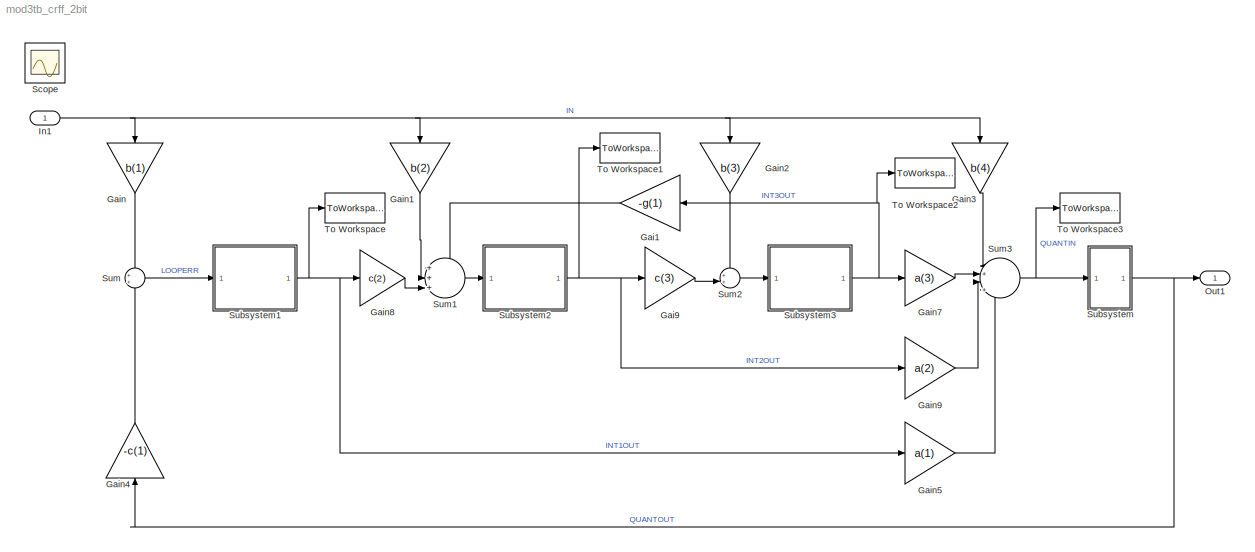
MODEL mod3tb_crff_2bit
KIND model
BLOCK [Gain] Gai1
  Gain = -g(1)
  NameLocation = top
  SID = 132
BLOCK [Gain] Gai9
  Gain = c(3)
  SID = 130
BLOCK [Gain] Gain
  Gain = b(1)
  NameLocation = left
  SID = 121
BLOCK [Gain] Gain1
  Gain = b(2)
  NameLocation = left
  SID = 122
BLOCK [Gain] Gain2
  Gain = b(3)
  NameLocation = left
  SID = 123
BLOCK [Gain] Gain3
  Gain = b(4)
  NameLocation = left
  SID = 124
BLOCK [Gain] Gain4
  Gain = -c(1)
  NameLocation = right
  SID = 125
BLOCK [Gain] Gain5
  Gain = a(1)
  SID = 238
BLOCK [Gain] Gain7
  Gain = a(3)
  SID = 131
BLOCK [Gain] Gain8
  Gain = c(2)
  SID = 129
BLOCK [Gain] Gain9
  Gain = a(2)
  SID = 237
BLOCK [Inport] In1
  SID = 73
BLOCK [Outport] Out1
  SID = 74
BLOCK [Scope] Scope
  Floating = off
  IOType = viewer
  NumInputPorts = 1
  Ports = []
  SID = 207
  ScopeSpecificationString = Simulink.scopes.TimeScopeBlockCfg('CurrentConfiguration', extmgr.ConfigurationSet(extmgr.Configuration('Core','General UI',true),extmgr.Configuration('Core','Source UI',true),extmgr.Configuration('Sources','WiredSimulink',true,'DataLoggingMaxPoints','7500','DataLoggingLimitDataPoints',true,'DataLoggingSaveFormat','Array','DataLoggingDecimation','1','DataLoggingDecimateData',true),extmgr.Configurat...<+5043ch>
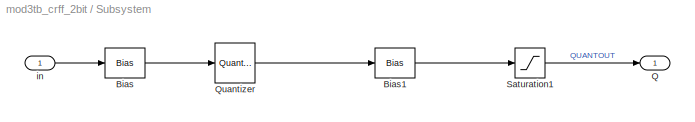
BLOCK [SubSystem] Subsystem
  AttributesFormatString = 3-bit quantiser
  Ports = [1, 1]
  RequestExecContextInheritance = off
  SID = 250
BLOCK [Bias] Subsystem/Bias
  AttributesFormatString = Need offset to give\\nMID-RISE quantiser
  Bias = 1/7
  SID = 252
  SaturateOnIntegerOverflow = off
BLOCK [Bias] Subsystem/Bias1
  Bias = -1/7
  SID = 253
  SaturateOnIntegerOverflow = off
BLOCK [Outport] Subsystem/Q
  SID = 256
BLOCK [Quantizer] Subsystem/Quantizer
  LinearizeAsGain = off
  NameLocation = top
  QuantizationInterval = 2/7
  SID = 254
BLOCK [Saturate] Subsystem/Saturation1
  AttributesFormatString = Limit quantiser\\noutput to +/-1
  LowerLimit = -1
  SID = 255
  UpperLimit = 1
BLOCK [Inport] Subsystem/in
  SID = 251
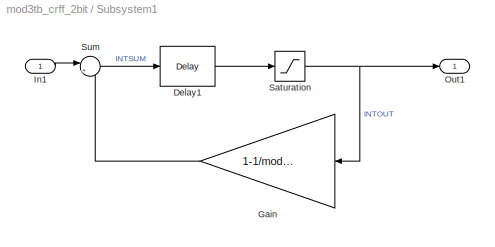
BLOCK [SubSystem] Subsystem1
  AttributesFormatString = Leaky delaying integrator
  Ports = [1, 1]
  RequestExecContextInheritance = off
  SID = 216
BLOCK [Delay] Subsystem1/Delay1
  DelayLength = 1
  InitialCondition = 0
  InputPortMap = u0
  Ports = [1, 1]
  SID = 218
  UserData = DataTag0
  UserDataPersistent = on
BLOCK [Gain] Subsystem1/Gain
  AttributesFormatString = Integrator leakage
  Gain = 1-1/modctrl.igain1
  SID = 219
BLOCK [Inport] Subsystem1/In1
  SID = 217
BLOCK [Outport] Subsystem1/Out1
  SID = 222
BLOCK [Saturate] Subsystem1/Saturation
  LowerLimit = -(modctrl.isat1)
  NameLocation = top
  SID = 220
  UpperLimit = modctrl.isat1
BLOCK [Sum] Subsystem1/Sum
  AttributesFormatString = Integrator summer
  Inputs = |++
  NameLocation = top
  Ports = [2, 1]
  SID = 221
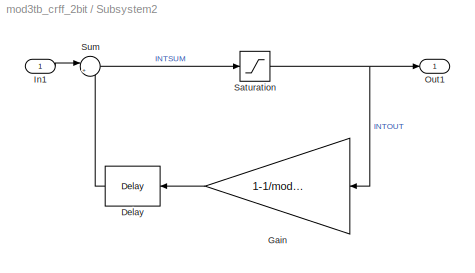
BLOCK [SubSystem] Subsystem2
  AttributesFormatString = Leaky delayless integrator
  Ports = [1, 1]
  RequestExecContextInheritance = off
  SID = 239
BLOCK [Delay] Subsystem2/Delay
  DelayLength = 1
  InitialCondition = 0
  InputPortMap = u0
  Ports = [1, 1]
  SID = 241
  UserData = DataTag1
  UserDataPersistent = on
BLOCK [Gain] Subsystem2/Gain
  AttributesFormatString = Integrator leakage
  Gain = 1-1/modctrl.igain2
  SID = 242
BLOCK [Inport] Subsystem2/In1
  SID = 240
BLOCK [Outport] Subsystem2/Out1
  SID = 245
BLOCK [Saturate] Subsystem2/Saturation
  LowerLimit = -(modctrl.isat2)
  NameLocation = top
  SID = 243
  UpperLimit = modctrl.isat2
BLOCK [Sum] Subsystem2/Sum
  AttributesFormatString = Integrator summer
  Inputs = |++
  NameLocation = top
  Ports = [2, 1]
  SID = 244
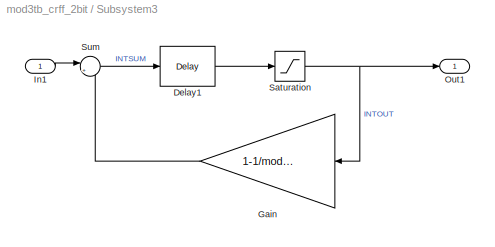
BLOCK [SubSystem] Subsystem3
  AttributesFormatString = Leaky delaying integrator
  Ports = [1, 1]
  RequestExecContextInheritance = off
  SID = 230
BLOCK [Delay] Subsystem3/Delay1
  DelayLength = 1
  InitialCondition = 0
  InputPortMap = u0
  Ports = [1, 1]
  SID = 232
  UserData = DataTag2
  UserDataPersistent = on
BLOCK [Gain] Subsystem3/Gain
  AttributesFormatString = Integrator leakage
  Gain = 1-1/modctrl.igain1
  SID = 233
BLOCK [Inport] Subsystem3/In1
  SID = 231
BLOCK [Outport] Subsystem3/Out1
  SID = 236
BLOCK [Saturate] Subsystem3/Saturation
  LowerLimit = -(modctrl.isat1)
  NameLocation = top
  SID = 234
  UpperLimit = modctrl.isat1
BLOCK [Sum] Subsystem3/Sum
  AttributesFormatString = Integrator summer
  Inputs = |++
  NameLocation = top
  Ports = [2, 1]
  SID = 235
BLOCK [Sum] Sum
  Ports = [2, 1]
  SID = 115
BLOCK [Sum] Sum1
  Inputs = +++||
  Ports = [3, 1]
  SID = 116
BLOCK [Sum] Sum2
  Inputs = ++|
  Ports = [2, 1]
  SID = 117
BLOCK [Sum] Sum3
  Inputs = |+|+|++
  Ports = [4, 1]
  SID = 118
BLOCK [ToWorkspace] To Workspace
  MaxDataPoints = inf
  Ports = [1]
  SID = 246
  SampleTime = -1
  VariableName = INT1OUT
BLOCK [ToWorkspace] To Workspace1
  MaxDataPoints = inf
  Ports = [1]
  SID = 247
  SampleTime = -1
  VariableName = INT2OUT
BLOCK [ToWorkspace] To Workspace2
  MaxDataPoints = inf
  Ports = [1]
  SID = 248
  SampleTime = -1
  VariableName = INT3OUT
BLOCK [ToWorkspace] To Workspace3
  MaxDataPoints = inf
  Ports = [1]
  SID = 249
  SampleTime = -1
  VariableName = Qin
LINE Gai1:1 -> Sum1:1
LINE Gai9:1 -> Sum2:2
LINE Gain1:1 -> Sum1:2
LINE Gain2:1 -> Sum2:1
LINE Gain3:1 -> Sum3:1
LINE Gain4:1 -> Sum:2
LINE Gain5:1 -> Sum3:4
LINE Gain7:1 -> Sum3:2
LINE Gain8:1 -> Sum1:3
LINE Gain9:1 -> Sum3:3
LINE Gain:1 -> Sum:1
NET In1:1 -> Gain1:1, Gain2:1, Gain3:1, Gain:1
LINE Subsystem/Bias1:1 -> Subsystem/Saturation1:1
LINE Subsystem/Bias:1 -> Subsystem/Quantizer:1
LINE Subsystem/Quantizer:1 -> Subsystem/Bias1:1
LINE Subsystem/Saturation1:1 -> Subsystem/Q:1
LINE Subsystem/in:1 -> Subsystem/Bias:1
LINE Subsystem1/Delay1:1 -> Subsystem1/Saturation:1
LINE Subsystem1/Gain:1 -> Subsystem1/Sum:2
LINE Subsystem1/In1:1 -> Subsystem1/Sum:1
NET Subsystem1/Saturation:1 -> Subsystem1/Gain:1, Subsystem1/Out1:1
LINE Subsystem1/Sum:1 -> Subsystem1/Delay1:1
NET Subsystem1:1 -> Gain5:1, Gain8:1, To Workspace:1
LINE Subsystem2/Delay:1 -> Subsystem2/Sum:2
LINE Subsystem2/Gain:1 -> Subsystem2/Delay:1
LINE Subsystem2/In1:1 -> Subsystem2/Sum:1
NET Subsystem2/Saturation:1 -> Subsystem2/Gain:1, Subsystem2/Out1:1
LINE Subsystem2/Sum:1 -> Subsystem2/Saturation:1
NET Subsystem2:1 -> Gai9:1, Gain9:1, To Workspace1:1
LINE Subsystem3/Delay1:1 -> Subsystem3/Saturation:1
LINE Subsystem3/Gain:1 -> Subsystem3/Sum:2
LINE Subsystem3/In1:1 -> Subsystem3/Sum:1
NET Subsystem3/Saturation:1 -> Subsystem3/Gain:1, Subsystem3/Out1:1
LINE Subsystem3/Sum:1 -> Subsystem3/Delay1:1
NET Subsystem3:1 -> Gai1:1, Gain7:1, To Workspace2:1
NET Subsystem:1 -> Gain4:1, Out1:1
LINE Sum1:1 -> Subsystem2:1
LINE Sum2:1 -> Subsystem3:1
NET Sum3:1 -> Subsystem:1, To Workspace3:1
LINE Sum:1 -> Subsystem1:1
note: NET lines group one-source signal fan-out (src -> all destinations, sorted); 1:1 wires keep LINE
